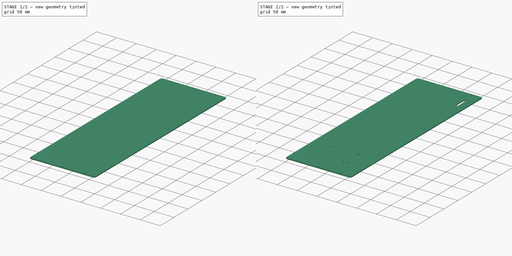
[diagram: build sequence overview — one tinted view per stage of 2, left to right]
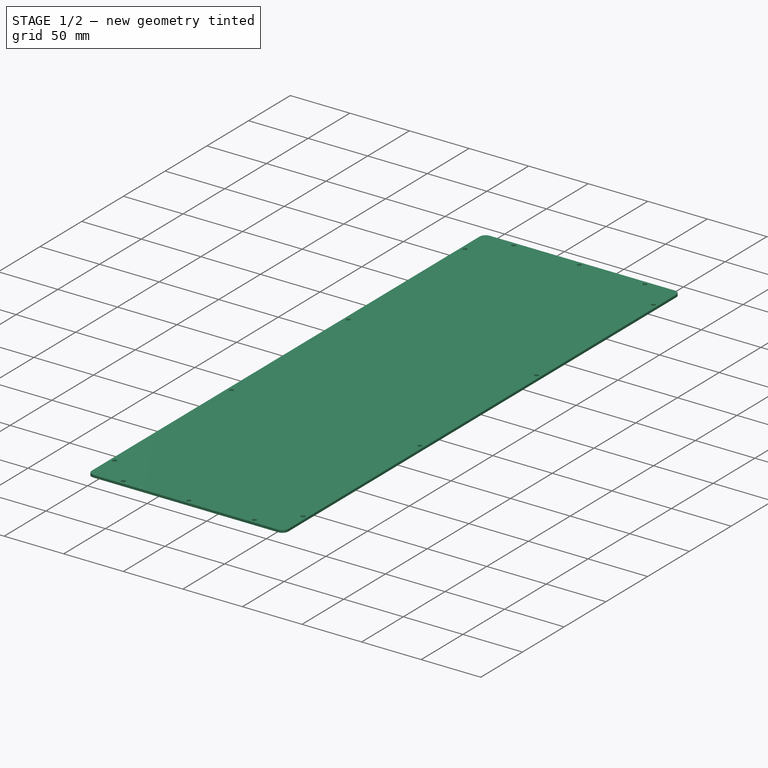
[diagram: stage 1 of 2 — iso view after this stage's code; geometry added in this stage tinted green]
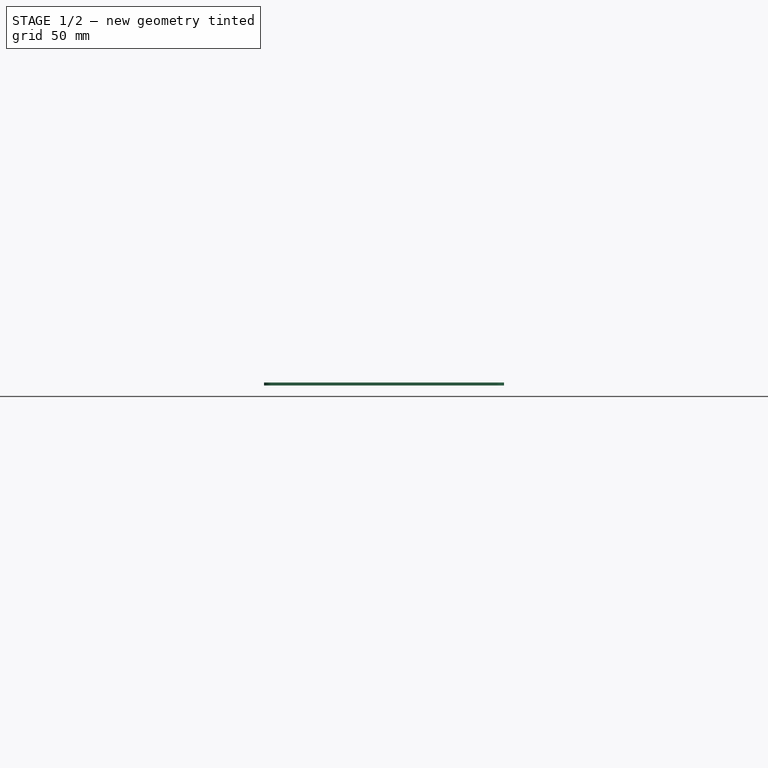
[diagram: stage 1 of 2 — front view after this stage's code; geometry added in this stage tinted green]
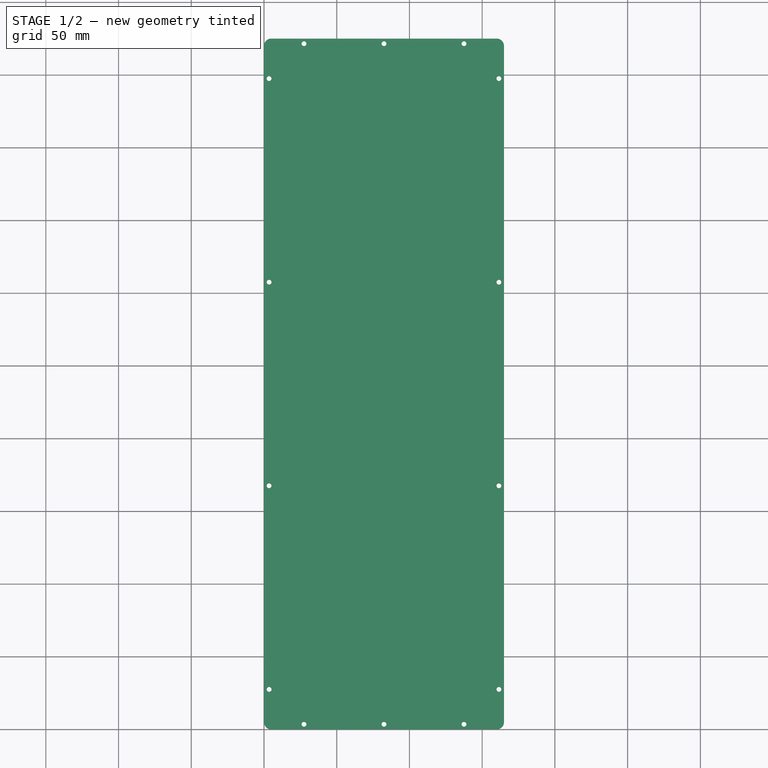
[diagram: stage 1 of 2 — top view after this stage's code; geometry added in this stage tinted green]
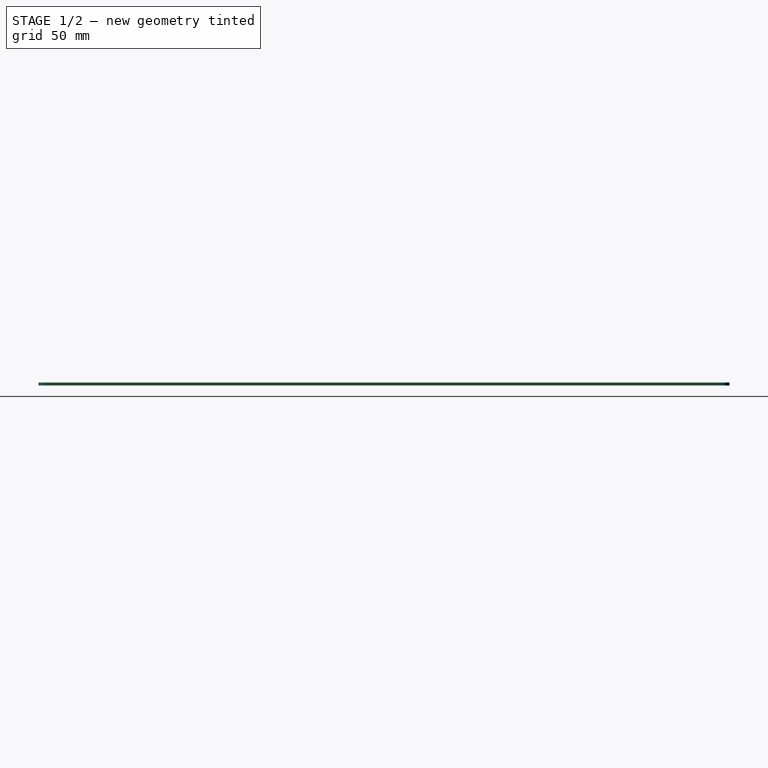
[diagram: stage 1 of 2 — right view after this stage's code; geometry added in this stage tinted green]
FCSTD DOCUMENT  (FreeCAD 0.16R5861 (Git))
Label: electronics_cover_revA
License: All rights reserved
LicenseURL: http://en.wikipedia.org/wiki/All_rights_reserved
objects: Drawing::FeatureView×65, Sketcher::SketchObject×4, PartDesign::Pocket×3, Drawing::FeatureViewPart×2, PartDesign::Pad×1, Drawing::FeaturePage×1
note: 12 computed .brp shape members not serialized (recipe doc carries the construction recipe); baked Part::Feature solids carry a one-line shape summary decoded from their .brp

FEATURE [Sketcher::SketchObject] Sketch
  sketch-geometry (8):
    g0: LineSegment StartX=5 StartY=475 StartZ=0 EndX=160 EndY=475 EndZ=0
    g1: LineSegment StartX=165 StartY=470 StartZ=0 EndX=165 EndY=5 EndZ=0
    g2: LineSegment StartX=160 StartY=0 StartZ=0 EndX=5 EndY=0 EndZ=0
    g3: LineSegment StartX=0 StartY=5 StartZ=0 EndX=0 EndY=470 EndZ=0
    g4: ArcOfCircle CenterX=5 CenterY=470 CenterZ=0 NormalX=0 NormalY=0 NormalZ=1 Radius=5 StartAngle=1.5708 EndAngle=3.14159
    g5: ArcOfCircle CenterX=160 CenterY=470 CenterZ=0 NormalX=0 NormalY=0 NormalZ=1 Radius=5 StartAngle=0 EndAngle=1.5708
    g6: ArcOfCircle CenterX=160 CenterY=5 CenterZ=0 NormalX=0 NormalY=0 NormalZ=1 Radius=5 StartAngle=4.71239 EndAngle=6.28319
    g7: ArcOfCircle CenterX=5 CenterY=5 CenterZ=0 NormalX=0 NormalY=0 NormalZ=1 Radius=5 StartAngle=3.14159 EndAngle=4.71239
  constraints (20):
    c: Horizontal(g0)
    c: Horizontal(g2)
    c: Vertical(g1)
    c: Vertical(g3)
    c: Tangent(g0,g4) = 1.5708
    c: Tangent(g3,g4) = 1.5708
    c: Radius(g4) = 5
    c: Tangent(g1,g5) = 1.5708
    c: Tangent(g0,g5) = 1.5708
    c: DistanceY(g-1,g0) = 475
    c: DistanceX(g1,g3) = -165
    c: Equal(g4,g5)
    c: Tangent(g1,g6) = 1.5708
    c: Tangent(g2,g6) = 1.5708
    c: Radius(g6) = 5
    c: Tangent(g3,g7) = 1.5708
    c: Tangent(g2,g7) = 1.5708
    c: Equal(g6,g7)
    c: PointOnObject(g-1,g3)
    c: PointOnObject(g-1,g2)
FEATURE [PartDesign::Pad] Pad
  Length = 2.03
  Length2 = 100
  Sketch = -> Sketch
  Type = 0
FEATURE [Sketcher::SketchObject] Sketch001
  ExternalGeometry = -> [Pad]
  Placement = pos=(0,0,2.03) rot=(0,0,1;0rad)
  Support = -> Pad [Face10]
  sketch-geometry (25):
    g0: LineSegment [constr] StartX=27.5 StartY=471.5 StartZ=0 EndX=137.5 EndY=471.5 EndZ=0
    g1: LineSegment [constr] StartX=137.5 StartY=471.5 StartZ=0 EndX=137.5 EndY=3.5 EndZ=0
    g2: LineSegment [constr] StartX=137.5 StartY=3.5 StartZ=0 EndX=27.5 EndY=3.5 EndZ=0
    g3: LineSegment [constr] StartX=27.5 StartY=3.5 StartZ=0 EndX=27.5 EndY=471.5 EndZ=0
    g4: Circle CenterX=137.5 CenterY=3.5 CenterZ=0 NormalX=0 NormalY=0 NormalZ=1 Radius=1.65
    g5: Circle CenterX=27.5 CenterY=3.5 CenterZ=0 NormalX=0 NormalY=0 NormalZ=1 Radius=1.65
    g6: LineSegment [constr] StartX=82.5 StartY=471.5 StartZ=0 EndX=82.5 EndY=3.5 EndZ=0
    g7: Circle CenterX=82.5 CenterY=3.5 CenterZ=0 NormalX=0 NormalY=0 NormalZ=1 Radius=1.65
    g8: LineSegment [constr] StartX=3.5 StartY=447.5 StartZ=0 EndX=161.5 EndY=447.5 EndZ=0
    g9: LineSegment [constr] StartX=161.5 StartY=447.5 StartZ=0 EndX=161.5 EndY=27.5 EndZ=0
    g10: LineSegment [constr] StartX=161.5 StartY=27.5 StartZ=0 EndX=3.5 EndY=27.5 EndZ=0
    g11: LineSegment [constr] StartX=3.5 StartY=27.5 StartZ=0 EndX=3.5 EndY=447.5 EndZ=0
    g12: LineSegment [constr] StartX=3.5 StartY=307.5 StartZ=0 EndX=161.5 EndY=307.5 EndZ=0
    g13: LineSegment [constr] StartX=3.5 StartY=167.5 StartZ=0 EndX=161.5 EndY=167.5 EndZ=0
    g14: Circle CenterX=3.5 CenterY=27.5 CenterZ=0 NormalX=0 NormalY=0 NormalZ=1 Radius=1.65
    g15: Circle CenterX=161.5 CenterY=27.5 CenterZ=0 NormalX=0 NormalY=0 NormalZ=1 Radius=1.65
    g16: Circle CenterX=161.5 CenterY=167.5 CenterZ=0 NormalX=0 NormalY=0 NormalZ=1 Radius=1.65
    g17: Circle CenterX=161.5 CenterY=307.5 CenterZ=0 NormalX=0 NormalY=0 NormalZ=1 Radius=1.65
    g18: Circle CenterX=3.5 CenterY=307.5 CenterZ=0 NormalX=0 NormalY=0 NormalZ=1 Radius=1.65
    g19: Circle CenterX=3.5 CenterY=167.5 CenterZ=0 NormalX=0 NormalY=0 NormalZ=1 Radius=1.65
    g20: Circle CenterX=3.5 CenterY=447.5 CenterZ=0 NormalX=0 NormalY=0 NormalZ=1 Radius=1.65
    g21: Circle CenterX=27.5 CenterY=471.5 CenterZ=0 NormalX=0 NormalY=0 NormalZ=1 Radius=1.65
    g22: Circle CenterX=82.5 CenterY=471.5 CenterZ=0 NormalX=0 NormalY=0 NormalZ=1 Radius=1.65
    g23: Circle CenterX=137.5 CenterY=471.5 CenterZ=0 NormalX=0 NormalY=0 NormalZ=1 Radius=1.65
    g24: Circle CenterX=161.5 CenterY=447.5 CenterZ=0 NormalX=0 NormalY=0 NormalZ=1 Radius=1.65
  constraints (64):
    c: Coincident(g1,g0)
    c: Coincident(g3,g0)
    c: Coincident(g2,g1)
    c: Coincident(g2,g3)
    c: Coincident(g8,g9)
    c: Coincident(g11,g8)
    c: Coincident(g10,g9)
    c: Coincident(g11,g10)
    c: Horizontal(g0)
    c: Horizontal(g8)
    c: Horizontal(g2)
    c: Horizontal(g10)
    c: Horizontal(g13)
    c: Horizontal(g12)
    c: Vertical(g11)
    c: Vertical(g3)
    c: Vertical(g6)
    c: Vertical(g1)
    c: Vertical(g9)
    c: DistanceY(g-1,g2) = 3.5
    c: DistanceX(g-1,g2) = 27.5
    c: Coincident(g2,g5)
    c: DistanceX(g-1,g1) = 137.5
    c: DistanceX(g-1,g6) = 82.5
    c: Coincident(g6,g7)
    c: Coincident(g1,g4)
    c: DistanceX(g-1,g10) = 3.5
    c: DistanceY(g-1,g10) = 27.5
    c: Coincident(g9,g15)
    c: Coincident(g10,g14)
    c: DistanceY(g12,g8) = 140
    c: Coincident(g13,g16)
    c: Coincident(g13,g19)
    c: Coincident(g12,g18)
    c: Coincident(g12,g17)
    c: PointOnObject(g6,g0)
    c: Coincident(g8,g24)
    c: Coincident(g0,g23)
    c: Coincident(g6,g22)
    c: Coincident(g0,g21)
    c: Coincident(g8,g20)
    c: Radius(g5) = 1.65
    c: Equal(g5,g14)
    c: Equal(g14,g7)
    c: Equal(g7,g4)
    c: Equal(g4,g15)
    c: Equal(g15,g16)
    c: Equal(g16,g19)
    c: Equal(g19,g18)
    c: Equal(g18,g17)
    c: Equal(g17,g24)
    c: Equal(g24,g23)
    c: Equal(g23,g22)
    c: Equal(g22,g21)
    c: Equal(g21,g20)
    c: PointOnObject(g6,g2)
    c: PointOnObject(g13,g9)
    c: PointOnObject(g13,g11)
    c: PointOnObject(g12,g11)
    c: PointOnObject(g12,g9)
    c: DistanceY(g-6,g0) = -3.5
    c: DistanceX(g10,g9) = 158
    c: DistanceY(g-1,g13) = 167.5
    c: DistanceY(g13,g12) = 140
FEATURE [PartDesign::Pocket] Pocket
  Length = 5
  Sketch = -> Sketch001
  Type = 0
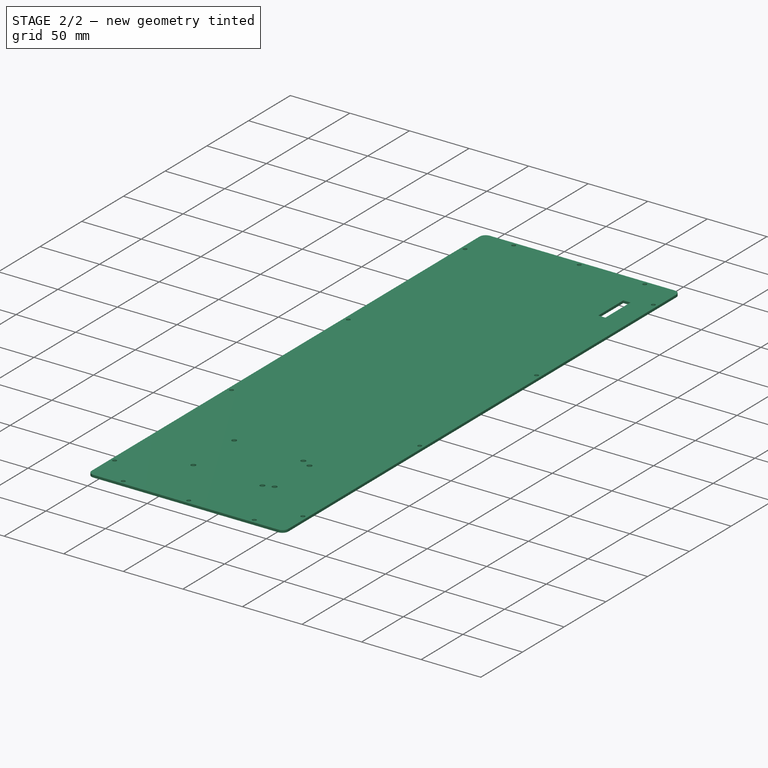
[diagram: stage 2 of 2 — iso view after this stage's code; geometry added in this stage tinted green]
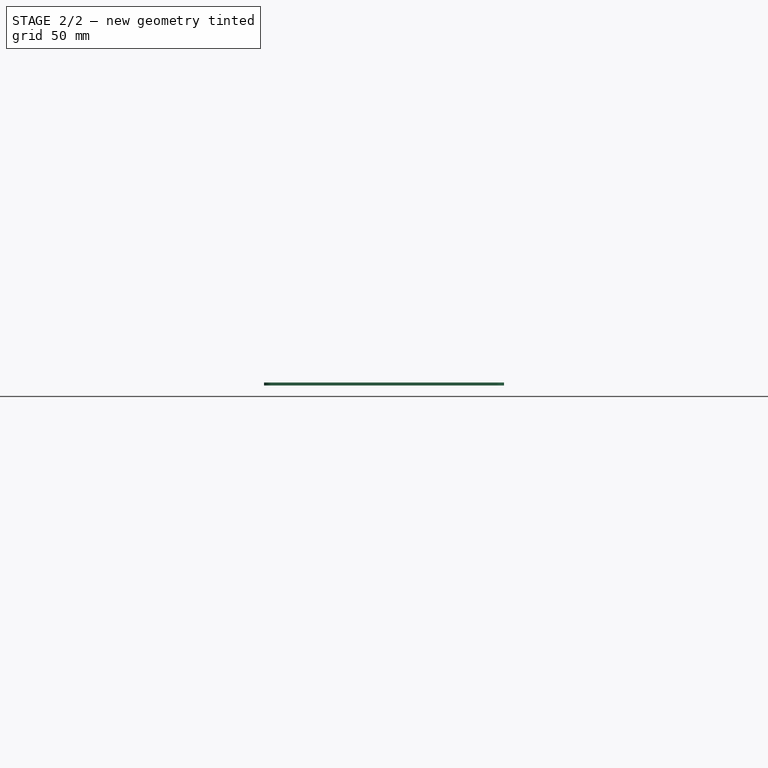
[diagram: stage 2 of 2 — front view after this stage's code; geometry added in this stage tinted green]
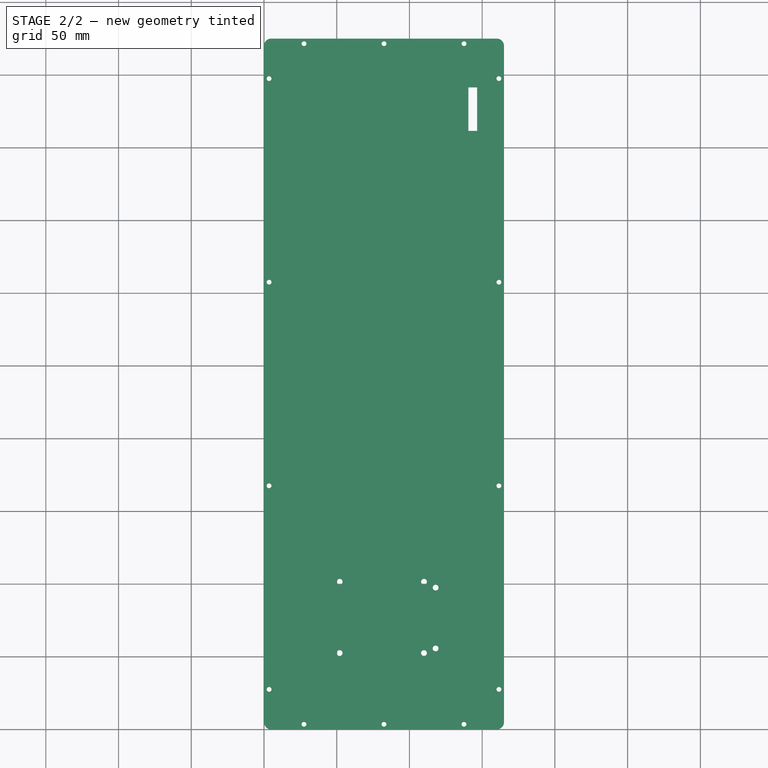
[diagram: stage 2 of 2 — top view after this stage's code; geometry added in this stage tinted green]
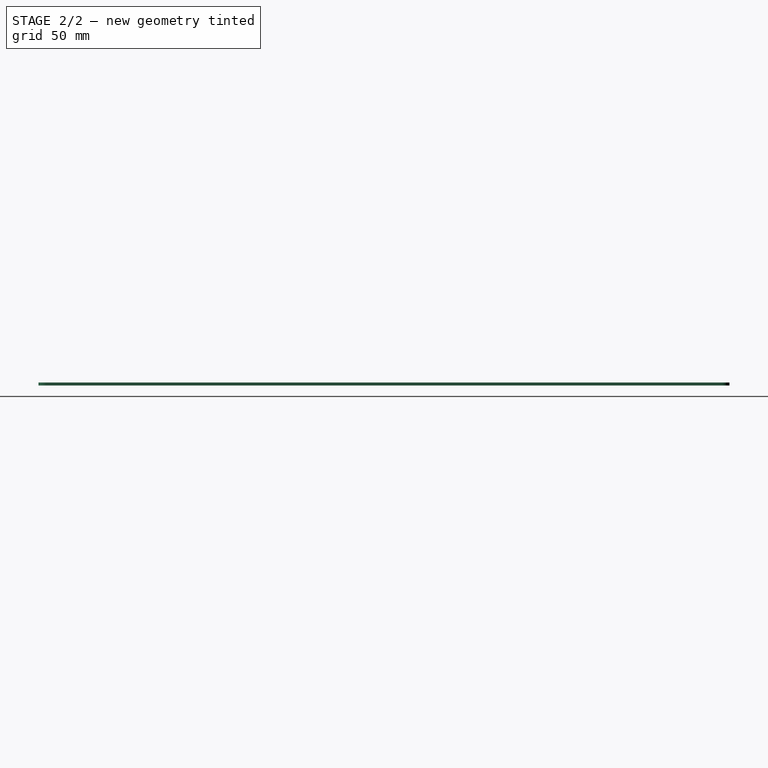
[diagram: stage 2 of 2 — right view after this stage's code; geometry added in this stage tinted green]
FEATURE [Sketcher::SketchObject] Sketch002
  Placement = pos=(0,0,2.03) rot=(0,0,1;0rad)
  Support = -> Pocket [Face5]
  sketch-geometry (4):
    g0: LineSegment StartX=140.5 StartY=441.5 StartZ=0 EndX=146.5 EndY=441.5 EndZ=0
    g1: LineSegment StartX=146.5 StartY=441.5 StartZ=0 EndX=146.5 EndY=411.5 EndZ=0
    g2: LineSegment StartX=146.5 StartY=411.5 StartZ=0 EndX=140.5 EndY=411.5 EndZ=0
    g3: LineSegment StartX=140.5 StartY=411.5 StartZ=0 EndX=140.5 EndY=441.5 EndZ=0
  constraints (12):
    c: Coincident(g0,g1)
    c: Coincident(g1,g2)
    c: Coincident(g2,g3)
    c: Coincident(g3,g0)
    c: Horizontal(g0)
    c: Horizontal(g2)
    c: Vertical(g1)
    c: Vertical(g3)
    c: DistanceY(g-1,g1) = 411.5
    c: DistanceY(g1) = -30
    c: DistanceX(g0) = 6
    c: DistanceX(g-1,g2) = 140.5
FEATURE [PartDesign::Pocket] Pocket001
  Length = 5
  Sketch = -> Sketch002
  Type = 0
FEATURE [Sketcher::SketchObject] Sketch004
  Placement = pos=(0,0,2.03) rot=(0,0,1;0rad)
  Support = -> Pocket001 [Face5]
  sketch-geometry (18):
    g0: LineSegment [constr] StartX=52 StartY=52.5 StartZ=0 EndX=110 EndY=52.5 EndZ=0
    g1: LineSegment [constr] StartX=110 StartY=52.5 StartZ=0 EndX=110 EndY=101.5 EndZ=0
    g2: LineSegment [constr] StartX=110 StartY=101.5 StartZ=0 EndX=52 EndY=101.5 EndZ=0
    g3: LineSegment [constr] StartX=52 StartY=101.5 StartZ=0 EndX=52 EndY=52.5 EndZ=0
    g4: Circle [constr] CenterX=52 CenterY=52.5 CenterZ=0 NormalX=0 NormalY=0 NormalZ=1 Radius=2
    g5: Circle [constr] CenterX=52 CenterY=101.5 CenterZ=0 NormalX=0 NormalY=0 NormalZ=1 Radius=2
    g6: Circle CenterX=118 CenterY=97.5 CenterZ=0 NormalX=0 NormalY=0 NormalZ=1 Radius=2
    g7: Circle CenterX=118 CenterY=55.675 CenterZ=0 NormalX=0 NormalY=0 NormalZ=1 Radius=2
    g8: LineSegment [constr] StartX=52 StartY=101.5 StartZ=0 EndX=52 EndY=52.5 EndZ=0
    g9: LineSegment [constr] StartX=118 StartY=55.675 StartZ=0 EndX=118 EndY=97.5 EndZ=0
    g10: Circle CenterX=52 CenterY=52.5 CenterZ=0 NormalX=0 NormalY=0 NormalZ=1 Radius=2
    g11: Circle CenterX=52 CenterY=101.5 CenterZ=0 NormalX=0 NormalY=0 NormalZ=1 Radius=2
    g12: Circle CenterX=110 CenterY=101.5 CenterZ=0 NormalX=0 NormalY=0 NormalZ=1 Radius=2
    g13: Circle CenterX=110 CenterY=52.5 CenterZ=0 NormalX=0 NormalY=0 NormalZ=1 Radius=2
    g14: LineSegment [constr] StartX=2.5 StartY=114 StartZ=0 EndX=52 EndY=101.5 EndZ=0
    g15: LineSegment [constr] StartX=52 StartY=101.5 StartZ=0 EndX=2.5 EndY=89 EndZ=0
    g16: LineSegment [constr] StartX=167.5 StartY=110 StartZ=0 EndX=118 EndY=97.5 EndZ=0
    g17: LineSegment [constr] StartX=118 StartY=97.5 StartZ=0 EndX=167.5 EndY=85 EndZ=0
  constraints (30):
    c: Coincident(g0,g1)
    c: Coincident(g3,g0)
    c: Coincident(g1,g2)
    c: Coincident(g2,g3)
    c: Coincident(g2,g8)
    c: Coincident(g2,g14)
    c: Coincident(g2,g15)
    c: Coincident(g3,g8)
    c: Coincident(g9,g16)
    c: Coincident(g9,g17)
    c: Distance(g-1,g0) = 52.5
    c: Distance(g-1,g3) = 52
    c: DistanceX(g0) = 58
    c: DistanceY(g3) = -49
    c: Radius(g4) = 2
    c: Equal(g4,g5)
    c: Equal(g5,g12)
    c: Equal(g12,g13)
    c: Equal(g13,g7)
    c: Equal(g7,g6)
    c: DistanceY(g-1,g7) = 55.675
    c: DistanceY(g9) = 41.825
    c: Distance(g-1,g9) = 118
    c: Coincident(g7,g9)
    c: Coincident(g6,g9)
    c: Coincident(g1,g12)
    c: Coincident(g2,g5)
    c: Coincident(g2,g11)
    c: Coincident(g0,g4)
    c: Coincident(g0,g10)
FEATURE [PartDesign::Pocket] Pocket002
  Length = 5
  Sketch = -> Sketch004
  Type = 0
FEATURE [Drawing::FeatureView] dimText004
  Rotation = 0
  ViewResult = <g> <text x="213.000000" y="48.000000" font-family="inherit" font-size="3" fill="rgb(0,0,0)" text-anchor="inherit" transform="rotate(0.000000 213.000000,48.000000)" >2. Material: 12AWG (0.8") Aluminum.</text> </g>
  Visible = true
  X = 0
  Y = 0
FEATURE [Drawing::FeatureView] dimText002
  Rotation = 0
  ViewResult = <g> <text x="216.000000" y="36.000000" font-family="inherit" font-size="5" fill="rgb(0,0,0)" text-anchor="inherit" transform="rotate(0.000000 216.000000,36.000000)" >Notes:</text> </g>
  Visible = true
  X = 0
  Y = 0
FEATURE [Drawing::FeatureView] dim026
  Rotation = 0
  ViewResult = <g>  <circle cx ="64.172750" cy ="69.110000" r="0.500000" stroke="none" fill="rgb(0,0,255)" /> \n<line x1="65.000000" y1="40.000000" x2="64.154002" y2="69.769734" style="stroke:rgb(0,0,255);stroke-width:0.20" />\n<polygon points="64.191498,68.450266 65.026415,65.472782 64.276718,65.451477 63.527021,65.430172" style="fill:rgb(0,0,255);stroke:rgb(0,0,255);stroke-width:0" />\n<polygon points="64.154002,69.769734 63.319085,72.747218 64.068782,72.768523 64.818479,72.789828" style="fill:rgb(0,0,255);stroke:rgb(0,0,255);stroke-width:0" />\n<line x1="65.000000" y1="40.000000" x2="85.000000" y2="40.000000" style="stroke:rgb(0,0,255);stroke-width:0.20" />\n<text x="75.000000" y="38.000000" font-family="Verdana" font-size="3" fill="rgb(0,0,255)" text-anchor="middle"  >6X Ø4.0 THRU</text> </g>
  Visible = true
  X = 0
  Y = 0
FEATURE [Drawing::FeatureView] dimText006
  Rotation = 0
  ViewResult = <g> <text x="213.000000" y="60.000000" font-family="inherit" font-size="3" fill="rgb(0,0,0)" text-anchor="inherit" transform="rotate(0.000000 213.000000,60.000000)" >4. Part is to be powder coated</text> </g>
  Visible = true
  X = 0
  Y = 0
FEATURE [Drawing::FeatureView] dimText005
  Rotation = 0
  ViewResult = <g> <text x="213.000000" y="54.000000" font-family="inherit" font-size="3.0" fill="rgb(0,0,0)" text-anchor="inherit"  >3. Break all sharp edges prior to coating.</text> </g>
  Visible = true
  X = 0
  Y = 0
FEATURE [Drawing::FeatureView] dimText009
  Rotation = 0
  ViewResult = <g> <text x="217.909644" y="76.059212" font-family="inherit" font-size="3" fill="rgb(0,0,0)" text-anchor="inherit" transform="rotate(0.000000 217.909644,76.059212)" >exceed 0.08mm</text> </g>
  Visible = true
  X = 0
  Y = 0
FEATURE [Drawing::FeatureView] dim012
  Rotation = 0
  ViewResult = <g> \n  <line x1="44.625000" y1="19.665000" x2="38.738699" y2="19.665000" style="stroke:rgb(0,0,255);stroke-width:0.20" />\n<line x1="44.625000" y1="20.334900" x2="38.738699" y2="20.334900" style="stroke:rgb(0,0,255);stroke-width:0.20" />\n<line x1="39.738699" y1="19.665000" x2="39.738699" y2="20.334900" style="stroke:rgb(0,0,255);stroke-width:0.20" /> \n  <polygon points="39.738699,20.334900 38.988699,23.334900 39.738699,23.334900 40.488699,23.334900" style="fill:rgb(0,0,255);stroke:rgb(0,0,255);stroke-width:0" /><polygon points="39.738699,19.665000 40.488699,16.665000 39.738699,16.665000 38.988699,16.665000" style="fill:rgb(0,0,255);stroke:rgb(0,0,255);stroke-width:0" /> \n  <text x="38.738699" y="19.999950" font-family="Verdana" font-size="3" fill="rgb(0,0,255)" text-anchor="middle" transform="rotate(-90.000000 38.738699,19.999950)" >2.03</text> </g>
  Visible = true
  X = 0
  Y = 0
FEATURE [Drawing::FeatureViewPart] Ortho001  label="Ortho_0_-1"
  Direction = (0,0,-1)
  HiddenWidth = 0.15
  LineWidth = 0.35
  Rotation = 90
  Scale = 0.33
  ShowHiddenLines = false
  ShowSmoothLines = false
  Source = -> Pocket002
  Tolerance = 0.05
  ViewResult = <g id="Ortho_0_-1"\n   transform="rotate(90,45.8,108.05) translate(45.8,108.05) scale(0.33,0.33)"\n  >\n<g   stroke="rgb(0, 0, 0)"\n   stroke-width="1.06061"\n   stroke-linecap="butt"\n   stroke-linejoin="miter"\n   fill="none"\n   transform="scale(1,-1)"\n  >\n<path id= "1" d=" M 4.00388e-27 5 L 4.00388e-27 470 " />\n<path d="M0 5 A5 5 0 0 0 -5 0" /><path d="M-5 475 A5 5 0 0 0 0 470" /><path id= "4" d=" M -160 0 L -5 0 " />\n<path id= "5" d=" M -5 475 L -160 475 " />\n<path d="M-160 0 A5 5 0 0 0 -165 5" /><path d="M-165 470 A5 5 0 0 0 -160 475" /><path id= "8" d=" M -165 470 L -165 5 " />\n<circle cx ="-161.5" cy ="27.5" r ="1.65" /><circle cx ="-161.5" cy ="307.5" r ="1.65" /><circle cx ="-137.5" cy ="3.5" r ="1.65" /><circle cx ="-27.5" cy ="471.5" r ="1.65" /><circle cx ="-137.5" cy ="471.5" r ="1.65" /><circle cx ="-82.5" cy ="471.5" r ="1.65" /><circle cx ="-3.5" cy ="27.5" r ="1.65" /><circle cx ="-3.5" cy ="167.5" r ="1.65" /><circle cx ="-3.5" cy ="447.5" r ="1.65" /><circle cx ="-3.5" cy ="307.5" r ="1.65" /><circle cx ="-27.5" cy ="3.5" r ="1.65" /><circle cx ="-82.5" cy ="3.5" r ="1.65" /><circle cx ="-161.5" cy ="167.5" r ="1.65" /><circle cx ="-161.5" cy ="447.5" r ="1.65" /><path id= "23" d=" M -146.5 441.5 L -146.5 411.5 " />\n<path id= "24" d=" M -140.5 441.5 L -146.5 441.5 " />\n<path id= "25" d=" M -146.5 411.5 L -140.5 411.5 " />\n<path id= "26" d=" M -140.5 411.5 L -140.5 441.5 " />\n<circle cx ="-52" cy ="101.5" r ="2" /><circle cx ="-110" cy ="101.5" r ="2" /><circle cx ="-118" cy ="97.5" r ="2" /><circle cx ="-118" cy ="55.675" r ="2" /><circle cx ="-52" cy ="52.5" r ="2" /><circle cx ="-110" cy ="52.5" r ="2" /></g>\n</g>
  Visible = true
  X = 45.8
  Y = 108.05
FEATURE [Drawing::FeatureViewPart] Ortho  label="Ortho_0_0"
  Direction = (1,0,0)
  HiddenWidth = 0.15
  LineWidth = 0.35
  Rotation = -90
  Scale = 0.33
  ShowHiddenLines = false
  ShowSmoothLines = false
  Source = -> Pocket002
  Tolerance = 0.05
  ViewResult = <g id="Ortho_0_0"\n   transform="rotate(-90,45.8,20.3349) translate(45.8,20.3349) scale(0.33,0.33)"\n  >\n<g   stroke="rgb(0, 0, 0)"\n   stroke-width="1.06061"\n   stroke-linecap="butt"\n   stroke-linejoin="miter"\n   fill="none"\n   transform="scale(1,-1)"\n  >\n<path d="M0,0 L0,-0.031439  L0,-0.12536  L0,-0.280583  L0,-0.495156  L0,-0.766379  L0,-1.09084  L0,-1.46447  L0,-1.88255  L0,-2.33984  L0,-2.83058  L0,-3.3486  L0,-3.8874  L0,-4.44018  L0,-5 " /><path d="M0,-470 L0,-470.56  L0,-471.113  L0,-471.651  L0,-472.169  L0,-472.66  L0,-473.117  L0,-473.536  L0,-473.909  L0,-474.234  L0,-474.505  L0,-474.719  L0,-474.875  L0,-474.969  L0,-475 " /><path id= "3" d=" M 0 -470 L 0 -5 " />\n<path d="M2.03,0 L2.03,-0.031439  L2.03,-0.12536  L2.03,-0.280583  L2.03,-0.495156  L2.03,-0.766379  L2.03,-1.09084  L2.03,-1.46447  L2.03,-1.88255  L2.03,-2.33984  L2.03,-2.83058  L2.03,-3.3486  L2.03,-3.8874  L2.03,-4.44018  L2.03,-5 " /><path d="M2.03,-470 L2.03,-470.56  L2.03,-471.113  L2.03,-471.651  L2.03,-472.169  L2.03,-472.66  L2.03,-473.117  L2.03,-473.536  L2.03,-473.909  L2.03,-474.234  L2.03,-474.505  L2.03,-474.719  L2.03,-474.875  L2.03,-474.969  L2.03,-475 " /><path id= "6" d=" M 2.03 -470 L 2.03 -5 " />\n<path id= "7" d=" M 0 0 L 2.03 0 " />\n<path id= "8" d=" M 0 -475 L 2.03 -475 " />\n</g>\n</g>
  Visible = true
  X = 45.8
  Y = 20.3349
FEATURE [Drawing::FeatureView] dimText003
  Rotation = 0
  ViewResult = <g> <text x="213.000000" y="42.000000" font-family="inherit" font-size="3" fill="rgb(0,0,0)" text-anchor="inherit" transform="rotate(0.000000 213.000000,42.000000)" >1. Parts must be RoHS compliant.</text> </g>
  Visible = true
  X = 0
  Y = 0
FEATURE [Drawing::FeatureView] dimText008
  Rotation = 0
  ViewResult = <g> <text x="217.529348" y="71.115364" font-family="inherit" font-size="3" fill="rgb(0,0,0)" text-anchor="inherit"  >Coating thickness not to</text> </g>
  Visible = true
  X = 0
  Y = 0
FEATURE [Drawing::FeatureView] dimText011
  Rotation = 0
  ViewResult = <g> <text x="217.461788" y="86.684768" font-family="inherit" font-size="3" fill="rgb(0,0,0)" text-anchor="inherit" transform="rotate(0.000000 217.461788,86.684768)" >shown on print.</text> </g>
  Visible = true
  X = 0
  Y = 0
FEATURE [Drawing::FeatureView] dimText007
  Rotation = 0
  ViewResult = <g> <text x="216.958904" y="65.410923" font-family="inherit" font-size="3" fill="rgb(0,0,0)" text-anchor="inherit"  >with Cardinal color C241-BK109.</text> </g>
  Visible = true
  X = 0
  Y = 0
FEATURE [Drawing::FeatureView] dimText010
  Rotation = 0
  ViewResult = <g> <text x="213.562473" y="81.585664" font-family="inherit" font-size="3" fill="rgb(0,0,0)" text-anchor="inherit"  >5. 3D model governs dimensions not</text> </g>
  Visible = true
  X = 0
  Y = 0
FEATURE [Drawing::FeatureView] dim003
  Rotation = 0
  ViewResult = <g> <line x1="45.800000" y1="108.400000" x2="45.800000" y2="124.307280" style="stroke:rgb(0,0,255);stroke-width:0.20" />\n<line x1="63.125000" y1="93.550053" x2="63.125000" y2="124.307280" style="stroke:rgb(0,0,255);stroke-width:0.20" />\n<line x1="45.800000" y1="123.307280" x2="63.125000" y2="123.307280" style="stroke:rgb(0,0,255);stroke-width:0.20" />\n<polygon points="45.800000,123.307280 48.800000,124.057280 48.800000,123.307280 48.800000,122.557280" style="fill:rgb(0,0,255);stroke:rgb(0,0,255);stroke-width:0" />\n<polygon points="63.125000,123.307280 60.125000,122.557280 60.125000,123.307280 60.125000,124.057280" style="fill:rgb(0,0,255);stroke:rgb(0,0,255);stroke-width:0" />\n<text x="54.462500" y="122.307280" font-family="Verdana" font-size="3.6" fill="rgb(0,0,255)" text-anchor="middle" transform="rotate(0.000000 54.462500,122.307280)" >52.5</text> </g> 
  Visible = true
  X = 0
  Y = 0
FEATURE [Drawing::FeatureView] dim004
  Rotation = 0
  ViewResult = <g> <line x1="45.800000" y1="108.400000" x2="45.800000" y2="130.404893" style="stroke:rgb(0,0,255);stroke-width:0.20" />\n<line x1="64.172750" y1="70.450053" x2="64.172750" y2="130.404893" style="stroke:rgb(0,0,255);stroke-width:0.20" />\n<line x1="45.800000" y1="129.404893" x2="64.172750" y2="129.404893" style="stroke:rgb(0,0,255);stroke-width:0.20" />\n<polygon points="45.800000,129.404893 48.800000,130.154893 48.800000,129.404893 48.800000,128.654893" style="fill:rgb(0,0,255);stroke:rgb(0,0,255);stroke-width:0" />\n<polygon points="64.172750,129.404893 61.172750,128.654893 61.172750,129.404893 61.172750,130.154893" style="fill:rgb(0,0,255);stroke:rgb(0,0,255);stroke-width:0" />\n<text x="54.986375" y="128.404893" font-family="Verdana" font-size="3.6" fill="rgb(0,0,255)" text-anchor="middle" transform="rotate(0.000000 54.986375,128.404893)" >55.675</text> </g> 
  Visible = true
  X = 0
  Y = 0
FEATURE [Drawing::FeatureView] dim005
  Rotation = 0
  ViewResult = <g> <line x1="45.800000" y1="108.400000" x2="45.800000" y2="136.050831" style="stroke:rgb(0,0,255);stroke-width:0.20" />\n<line x1="79.295000" y1="92.230053" x2="79.295000" y2="136.050831" style="stroke:rgb(0,0,255);stroke-width:0.20" />\n<line x1="45.800000" y1="135.050831" x2="79.295000" y2="135.050831" style="stroke:rgb(0,0,255);stroke-width:0.20" />\n<polygon points="45.800000,135.050831 48.800000,135.800831 48.800000,135.050831 48.800000,134.300831" style="fill:rgb(0,0,255);stroke:rgb(0,0,255);stroke-width:0" />\n<polygon points="79.295000,135.050831 76.295000,134.300831 76.295000,135.050831 76.295000,135.800831" style="fill:rgb(0,0,255);stroke:rgb(0,0,255);stroke-width:0" />\n<text x="62.547500" y="134.050831" font-family="Verdana" font-size="3.6" fill="rgb(0,0,255)" text-anchor="middle" transform="rotate(0.000000 62.547500,134.050831)" >101.5</text> </g> 
  Visible = true
  X = 0
  Y = 0
FEATURE [Drawing::FeatureView] dimText012
  Rotation = 0
  ViewResult = <g> <text x="213.262526" y="91.783872" font-family="inherit" font-size="3" fill="rgb(0,0,0)" text-anchor="inherit"  >6. Mask entire outward facing surface</text> </g>
  Visible = true
  X = 0
  Y = 0
FEATURE [Drawing::FeatureView] dimText013
  Rotation = 0
  ViewResult = <g> <text x="217.511154" y="97.476542" font-family="inherit" font-size="3" fill="rgb(0,0,0)" text-anchor="inherit"  >shown to the left prior to powder coat</text> </g>
  Visible = true
  X = 0
  Y = 0
FEATURE [Drawing::FeatureView] dimText001
  Rotation = 0
  ViewResult = <g> <text x="8.581825" y="167.345594" font-family="inherit" font-size="5" fill="rgb(0,0,0)" text-anchor="inherit" transform="rotate(0.000000 8.581825,167.345594)" >Revision</text> </g>
  Visible = true
  X = 0
  Y = 0
FEATURE [Drawing::FeatureView] dimText014
  Rotation = 0
  ViewResult = <g> <text x="39.069889" y="167.119757" font-family="inherit" font-size="5" fill="rgb(0,0,0)" text-anchor="inherit"  >Notes</text> </g>
  Visible = true
  X = 0
  Y = 0
FEATURE [Drawing::FeatureView] dimText015
  Rotation = 0
  ViewResult = <g> <text x="15.131113" y="173.217370" font-family="inherit" font-size="4" fill="rgb(0,0,0)" text-anchor="inherit" transform="rotate(0.000000 15.131113,173.217370)" >IR</text> </g>
  Visible = true
  X = 0
  Y = 0
FEATURE [Drawing::FeatureView] dimText016
  Rotation = 0
  ViewResult = <g> <text x="38.844052" y="172.991532" font-family="inherit" font-size="4" fill="rgb(0,0,0)" text-anchor="inherit" transform="rotate(0.000000 38.844052,172.991532)" >Mangrove build release</text> </g>
  Visible = true
  X = 0
  Y = 0
FEATURE [Drawing::FeatureView] dimText017
  Rotation = 0
  ViewResult = <g> <text x="13.776088" y="179.314982" font-family="inherit" font-size="4" fill="rgb(0,0,0)" text-anchor="inherit"  >4.0</text> </g>
  Visible = true
  X = 0
  Y = 0
FEATURE [Drawing::FeatureView] dimText018
  Rotation = 0
  ViewResult = <g> <text x="38.844052" y="179.314982" font-family="inherit" font-size="4" fill="rgb(0,0,0)" text-anchor="inherit" transform="rotate(0.000000 38.844052,179.314982)" >Nutmeg build release.</text> </g>
  Visible = true
  X = 0
  Y = 0
FEATURE [Drawing::FeatureView] dimText019
  Rotation = 0
  ViewResult = <g> <text x="42.231614" y="184.283408" font-family="inherit" font-size="4" fill="rgb(0,0,0)" text-anchor="inherit" transform="rotate(0.000000 42.231614,184.283408)" >Masking callout added</text> </g>
  Visible = true
  X = 0
  Y = 0
FEATURE [Drawing::FeatureView] dimText020
  Rotation = 0
  ViewResult = <g> <text x="14.453601" y="189.025995" font-family="inherit" font-size="3.5" fill="rgb(0,0,0)" text-anchor="inherit"  >4.1</text> </g>
  Visible = true
  X = 0
  Y = 0
FEATURE [Drawing::FeatureView] dimText021
  Rotation = 0
  ViewResult = <g> <text x="38.844052" y="189.025995" font-family="inherit" font-size="3.5" fill="rgb(0,0,0)" text-anchor="inherit"  >Was 480 x 170, now 478 x 168</text> </g>
  Visible = true
  X = 0
  Y = 0
FEATURE [Drawing::FeatureView] dimText022
  Rotation = 0
  ViewResult = <g> <text x="42.909127" y="193.091070" font-family="inherit" font-size="3.5" fill="rgb(0,0,0)" text-anchor="inherit"  >5mm holes were 6mm to edge, now 5 mm to edge</text> </g>
  Visible = true
  X = 0
  Y = 0
FEATURE [Drawing::FeatureView] dimText023
  Rotation = 0
  ViewResult = <g> <text x="43.360802" y="197.381983" font-family="inherit" font-size="3.5" fill="rgb(0,0,0)" text-anchor="inherit"  >SD slot moved 1mm to accommodate width change</text> </g>
  Visible = true
  X = 0
  Y = 0
FEATURE [Drawing::FeatureView] dim009
  Rotation = 0
  ViewResult = <g> <line x1="45.800000" y1="108.400000" x2="45.800000" y2="161.491008" style="stroke:rgb(0,0,255);stroke-width:0.20" />\n<line x1="202.550000" y1="108.400000" x2="202.550000" y2="161.491008" style="stroke:rgb(0,0,255);stroke-width:0.20" />\n<line x1="45.800000" y1="160.491008" x2="202.550000" y2="160.491008" style="stroke:rgb(0,0,255);stroke-width:0.20" />\n<polygon points="45.800000,160.491008 48.800000,161.241008 48.800000,160.491008 48.800000,159.741008" style="fill:rgb(0,0,255);stroke:rgb(0,0,255);stroke-width:0" />\n<polygon points="202.550000,160.491008 199.550000,159.741008 199.550000,160.491008 199.550000,161.241008" style="fill:rgb(0,0,255);stroke:rgb(0,0,255);stroke-width:0" />\n<text x="124.175000" y="159.491008" font-family="Verdana" font-size="3.6" fill="rgb(0,0,255)" text-anchor="middle" transform="rotate(0.000000 124.175000,159.491008)" >475</text> </g> 
  Visible = true
  X = 0
  Y = 0
FEATURE [Drawing::FeatureView] dim008
  Rotation = 0
  ViewResult = <g> <line x1="45.800000" y1="108.400000" x2="45.800000" y2="155.208052" style="stroke:rgb(0,0,255);stroke-width:0.20" />\n<line x1="193.475000" y1="108.350551" x2="193.475000" y2="155.208052" style="stroke:rgb(0,0,255);stroke-width:0.20" />\n<line x1="45.800000" y1="154.208052" x2="193.475000" y2="154.208052" style="stroke:rgb(0,0,255);stroke-width:0.20" />\n<polygon points="45.800000,154.208052 48.800000,154.958052 48.800000,154.208052 48.800000,153.458052" style="fill:rgb(0,0,255);stroke:rgb(0,0,255);stroke-width:0" />\n<polygon points="193.475000,154.208052 190.475000,153.458052 190.475000,154.208052 190.475000,154.958052" style="fill:rgb(0,0,255);stroke:rgb(0,0,255);stroke-width:0" />\n<text x="119.637500" y="153.208052" font-family="Verdana" font-size="3.6" fill="rgb(0,0,255)" text-anchor="middle" transform="rotate(0.000000 119.637500,153.208052)" >447.5</text> </g> 
  Visible = true
  X = 0
  Y = 0
FEATURE [Drawing::FeatureView] dim019
  Rotation = 0
  ViewResult = <g> <line x1="202.550000" y1="108.400000" x2="202.550000" y2="120.877552" style="stroke:rgb(0,0,255);stroke-width:0.20" />\n<line x1="201.395000" y1="100.430551" x2="201.395000" y2="120.877552" style="stroke:rgb(0,0,255);stroke-width:0.20" />\n<line x1="202.550000" y1="119.877552" x2="201.395000" y2="119.877552" style="stroke:rgb(0,0,255);stroke-width:0.20" />\n<polygon points="202.550000,119.877552 205.550000,120.627552 205.550000,119.877552 205.550000,119.127552" style="fill:rgb(0,0,255);stroke:rgb(0,0,255);stroke-width:0" />\n<polygon points="201.395000,119.877552 198.395000,119.127552 198.395000,119.877552 198.395000,120.627552" style="fill:rgb(0,0,255);stroke:rgb(0,0,255);stroke-width:0" />\n<text x="209.691175" y="120.949013" font-family="Verdana" font-size="3.6" fill="rgb(0,0,255)" text-anchor="middle" transform="rotate(0.000000 209.691175,120.949013)" >3.5</text> </g> 
  Visible = true
  X = 0
  Y = 0
FEATURE [Drawing::FeatureView] dim023
  Rotation = 0
  ViewResult = <g> <line x1="202.900000" y1="53.600000" x2="211.283707" y2="53.600000" style="stroke:rgb(0,0,255);stroke-width:0.20" />\n<line x1="202.900000" y1="108.050000" x2="211.283707" y2="108.050000" style="stroke:rgb(0,0,255);stroke-width:0.20" />\n<line x1="210.283707" y1="53.600000" x2="210.283707" y2="108.050000" style="stroke:rgb(0,0,255);stroke-width:0.20" />\n<polygon points="210.283707,53.600000 209.533707,56.600000 210.283707,56.600000 211.033707,56.600000" style="fill:rgb(0,0,255);stroke:rgb(0,0,255);stroke-width:0" />\n<polygon points="210.283707,108.050000 211.033707,105.050000 210.283707,105.050000 209.533707,105.050000" style="fill:rgb(0,0,255);stroke:rgb(0,0,255);stroke-width:0" />\n<text x="209.283707" y="80.825000" font-family="Verdana" font-size="3.6" fill="rgb(0,0,255)" text-anchor="middle" transform="rotate(-90.000000 209.283707,80.825000)" >165</text> </g> 
  Visible = true
  X = 0
  Y = 0
FEATURE [Drawing::FeatureView] dim007
  Rotation = 0
  ViewResult = <g> <line x1="45.800000" y1="108.400000" x2="45.800000" y2="149.009826" style="stroke:rgb(0,0,255);stroke-width:0.20" />\n<line x1="147.275000" y1="109.439551" x2="147.275000" y2="149.009826" style="stroke:rgb(0,0,255);stroke-width:0.20" />\n<line x1="45.800000" y1="148.009826" x2="147.275000" y2="148.009826" style="stroke:rgb(0,0,255);stroke-width:0.20" />\n<polygon points="45.800000,148.009826 48.800000,148.759826 48.800000,148.009826 48.800000,147.259826" style="fill:rgb(0,0,255);stroke:rgb(0,0,255);stroke-width:0" />\n<polygon points="147.275000,148.009826 144.275000,147.259826 144.275000,148.009826 144.275000,148.759826" style="fill:rgb(0,0,255);stroke:rgb(0,0,255);stroke-width:0" />\n<text x="96.537500" y="147.009826" font-family="Verdana" font-size="3.6" fill="rgb(0,0,255)" text-anchor="middle" transform="rotate(0.000000 96.537500,147.009826)" >307.5</text> </g> 
  Visible = true
  X = 0
  Y = 0
FEATURE [Drawing::FeatureView] dim006
  Rotation = 0
  ViewResult = <g> <line x1="45.800000" y1="108.400000" x2="45.800000" y2="142.584087" style="stroke:rgb(0,0,255);stroke-width:0.20" />\n<line x1="101.075000" y1="108.350551" x2="101.075000" y2="142.584087" style="stroke:rgb(0,0,255);stroke-width:0.20" />\n<line x1="45.800000" y1="141.584087" x2="101.075000" y2="141.584087" style="stroke:rgb(0,0,255);stroke-width:0.20" />\n<polygon points="45.800000,141.584087 48.800000,142.334087 48.800000,141.584087 48.800000,140.834087" style="fill:rgb(0,0,255);stroke:rgb(0,0,255);stroke-width:0" />\n<polygon points="101.075000,141.584087 98.075000,140.834087 98.075000,141.584087 98.075000,142.334087" style="fill:rgb(0,0,255);stroke:rgb(0,0,255);stroke-width:0" />\n<text x="73.437500" y="140.584087" font-family="Verdana" font-size="3.6" fill="rgb(0,0,255)" text-anchor="middle" transform="rotate(0.000000 73.437500,140.584087)" >167.5</text> </g> 
  Visible = true
  X = 0
  Y = 0
FEATURE [Drawing::FeatureView] dim001
  Rotation = 0
  ViewResult = <g> <line x1="45.800000" y1="108.400000" x2="45.800000" y2="118.514792" style="stroke:rgb(0,0,255);stroke-width:0.20" />\n<line x1="54.875000" y1="109.439551" x2="54.875000" y2="118.514792" style="stroke:rgb(0,0,255);stroke-width:0.20" />\n<line x1="45.800000" y1="117.514792" x2="54.875000" y2="117.514792" style="stroke:rgb(0,0,255);stroke-width:0.20" />\n<polygon points="45.800000,117.514792 48.800000,118.264792 48.800000,117.514792 48.800000,116.764792" style="fill:rgb(0,0,255);stroke:rgb(0,0,255);stroke-width:0" />\n<polygon points="54.875000,117.514792 51.875000,116.764792 51.875000,117.514792 51.875000,118.264792" style="fill:rgb(0,0,255);stroke:rgb(0,0,255);stroke-width:0" />\n<text x="50.337500" y="116.514792" font-family="Verdana" font-size="3.6" fill="rgb(0,0,255)" text-anchor="middle" transform="rotate(0.000000 50.337500,116.514792)" >27.5</text> </g> 
  Visible = true
  X = 0
  Y = 0
FEATURE [Drawing::FeatureView] dim013
  Rotation = 0
  ViewResult = <g> <line x1="45.800000" y1="108.400000" x2="45.800000" y2="113.613804" style="stroke:rgb(0,0,255);stroke-width:0.20" />\n<line x1="46.955000" y1="100.430551" x2="46.955000" y2="113.613804" style="stroke:rgb(0,0,255);stroke-width:0.20" />\n<line x1="45.800000" y1="112.613804" x2="46.955000" y2="112.613804" style="stroke:rgb(0,0,255);stroke-width:0.20" />\n<polygon points="45.800000,112.613804 42.800000,111.863804 42.800000,112.613804 42.800000,113.363804" style="fill:rgb(0,0,255);stroke:rgb(0,0,255);stroke-width:0" />\n<polygon points="46.955000,112.613804 49.955000,113.363804 49.955000,112.613804 49.955000,111.863804" style="fill:rgb(0,0,255);stroke:rgb(0,0,255);stroke-width:0" />\n<text x="39.685763" y="113.589105" font-family="Verdana" font-size="3.6" fill="rgb(0,0,255)" text-anchor="middle" transform="rotate(0.000000 39.685763,113.589105)" >3.5</text> </g> 
  Visible = true
  X = 0
  Y = 0
FEATURE [Drawing::FeatureView] dim002
  Rotation = 0
  ViewResult = <g> <line x1="45.450000" y1="108.050000" x2="34.626050" y2="108.050000" style="stroke:rgb(0,0,255);stroke-width:0.20" />\n<line x1="53.419347" y1="106.895000" x2="34.626050" y2="106.895000" style="stroke:rgb(0,0,255);stroke-width:0.20" />\n<line x1="35.626050" y1="108.050000" x2="35.626050" y2="106.895000" style="stroke:rgb(0,0,255);stroke-width:0.20" />\n<polygon points="35.626050,108.050000 34.876050,111.050000 35.626050,111.050000 36.376050,111.050000" style="fill:rgb(0,0,255);stroke:rgb(0,0,255);stroke-width:0" />\n<polygon points="35.626050,106.895000 36.376050,103.895000 35.626050,103.895000 34.876050,103.895000" style="fill:rgb(0,0,255);stroke:rgb(0,0,255);stroke-width:0" />\n<text x="36.620266" y="114.831874" font-family="Verdana" font-size="3.6" fill="rgb(0,0,255)" text-anchor="middle" transform="rotate(-90.000000 36.620266,114.831874)" >3.5</text> </g> 
  Visible = true
  X = 0
  Y = 0
FEATURE [Drawing::FeatureView] dim025
  Rotation = 0
  ViewResult = <g> <line x1="179.595000" y1="59.705000" x2="172.324536" y2="59.705000" style="stroke:rgb(0,0,255);stroke-width:0.20" />\n<line x1="173.324536" y1="59.705000" x2="173.324536" y2="53.600000" style="stroke:rgb(0,0,255);stroke-width:0.20" />\n<polygon points="173.324536,59.705000 172.574536,62.705000 173.324536,62.705000 174.074536,62.705000" style="fill:rgb(0,0,255);stroke:rgb(0,0,255);stroke-width:0" />\n<polygon points="173.324536,53.600000 174.074536,50.600000 173.324536,50.600000 172.574536,50.600000" style="fill:rgb(0,0,255);stroke:rgb(0,0,255);stroke-width:0" />\n<text x="174.332970" y="44.938325" font-family="Verdana" font-size="3.6" fill="rgb(0,0,255)" text-anchor="middle" transform="rotate(-90.000000 174.332970,44.938325)" >18.5</text> </g> 
  Visible = true
  X = 0
  Y = 0
FEATURE [Drawing::FeatureView] dim010
  Rotation = 0
  ViewResult = <g> <line x1="202.550000" y1="53.250000" x2="202.550000" y2="47.583393" style="stroke:rgb(0,0,255);stroke-width:0.20" />\n<line x1="191.495000" y1="57.705000" x2="191.495000" y2="47.583393" style="stroke:rgb(0,0,255);stroke-width:0.20" />\n<line x1="202.550000" y1="48.583393" x2="191.495000" y2="48.583393" style="stroke:rgb(0,0,255);stroke-width:0.20" />\n<polygon points="202.550000,48.583393 199.550000,47.833393 199.550000,48.583393 199.550000,49.333393" style="fill:rgb(0,0,255);stroke:rgb(0,0,255);stroke-width:0" />\n<polygon points="191.495000,48.583393 194.495000,49.333393 194.495000,48.583393 194.495000,47.833393" style="fill:rgb(0,0,255);stroke:rgb(0,0,255);stroke-width:0" />\n<text x="197.022500" y="47.583393" font-family="Verdana" font-size="3.6" fill="rgb(0,0,255)" text-anchor="middle" transform="rotate(0.000000 197.022500,47.583393)" >33.5</text> </g> 
  Visible = true
  X = 0
  Y = 0
FEATURE [Drawing::FeatureView] dim011
  Rotation = 0
  ViewResult = <g> \n  <line x1="191.495000" y1="57.705000" x2="191.495000" y2="47.478348" style="stroke:rgb(0,0,255);stroke-width:0.20" />\n<line x1="181.595000" y1="57.705000" x2="181.595000" y2="47.478348" style="stroke:rgb(0,0,255);stroke-width:0.20" />\n<line x1="191.495000" y1="48.478348" x2="181.595000" y2="48.478348" style="stroke:rgb(0,0,255);stroke-width:0.20" /> \n  <polygon points="181.595000,48.478348 184.595000,49.228348 184.595000,48.478348 184.595000,47.728348" style="fill:rgb(0,0,255);stroke:rgb(0,0,255);stroke-width:0" /><polygon points="191.495000,48.478348 188.495000,47.728348 188.495000,48.478348 188.495000,49.228348" style="fill:rgb(0,0,255);stroke:rgb(0,0,255);stroke-width:0" /> \n  <text x="186.545000" y="47.478348" font-family="Verdana" font-size="3.6" fill="rgb(0,0,255)" text-anchor="middle" transform="rotate(0.000000 186.545000,47.478348)" >30</text> </g>
  Visible = true
  X = 0
  Y = 0
FEATURE [Drawing::FeatureView] dim022
  Rotation = 0
  ViewResult = <g> <line x1="193.495000" y1="59.705000" x2="208.779353" y2="59.705000" style="stroke:rgb(0,0,255);stroke-width:0.20" />\n<line x1="193.495000" y1="61.685000" x2="208.779353" y2="61.685000" style="stroke:rgb(0,0,255);stroke-width:0.20" />\n<line x1="207.779353" y1="59.705000" x2="207.779353" y2="61.685000" style="stroke:rgb(0,0,255);stroke-width:0.20" />\n<polygon points="207.779353,59.705000 208.529353,56.705000 207.779353,56.705000 207.029353,56.705000" style="fill:rgb(0,0,255);stroke:rgb(0,0,255);stroke-width:0" />\n<polygon points="207.779353,61.685000 207.029353,64.685000 207.779353,64.685000 208.529353,64.685000" style="fill:rgb(0,0,255);stroke:rgb(0,0,255);stroke-width:0" />\n<text x="208.950161" y="66.693363" font-family="Verdana" font-size="3.6" fill="rgb(0,0,255)" text-anchor="middle" transform="rotate(-90.000000 208.950161,66.693363)" >6</text> </g> 
  Visible = true
  X = 0
  Y = 0
FEATURE [Drawing::FeatureView] dim024
  Rotation = 0
  ViewResult = <g>  <circle cx ="101.075000" cy ="54.755000" r="0.500000" stroke="none" fill="rgb(0,0,255)" /> \n<line x1="104.675414" y1="41.144094" x2="100.935756" y2="55.281395" style="stroke:rgb(0,0,255);stroke-width:0.20" />\n<polygon points="101.214244,54.228605 102.706491,51.520156 101.981429,51.328359 101.256368,51.136563" style="fill:rgb(0,0,255);stroke:rgb(0,0,255);stroke-width:0" />\n<polygon points="100.935756,55.281395 99.443509,57.989844 100.168571,58.181641 100.893632,58.373437" style="fill:rgb(0,0,255);stroke:rgb(0,0,255);stroke-width:0" />\n<line x1="104.675414" y1="41.144094" x2="155.349206" y2="41.144094" style="stroke:rgb(0,0,255);stroke-width:0.20" />\n<text x="130.012310" y="40.144094" font-family="Verdana" font-size="3.6" fill="rgb(0,0,255)" text-anchor="middle"  >14x Ø3.4 THRU</text> </g>
  Visible = true
  X = 0
  Y = 0
FEATURE [Drawing::FeatureView] dim027
  Rotation = 0
  ViewResult = <g> <line x1="45.450000" y1="53.600000" x2="20.455435" y2="53.600000" style="stroke:rgb(0,0,255);stroke-width:0.20" />\n<line x1="53.419347" y1="54.755000" x2="20.455435" y2="54.755000" style="stroke:rgb(0,0,255);stroke-width:0.20" />\n<line x1="21.455435" y1="53.600000" x2="21.455435" y2="54.755000" style="stroke:rgb(0,0,255);stroke-width:0.20" />\n<polygon points="21.455435,53.600000 22.205435,50.600000 21.455435,50.600000 20.705435,50.600000" style="fill:rgb(0,0,255);stroke:rgb(0,0,255);stroke-width:0" />\n<polygon points="21.455435,54.755000 20.705435,57.755000 21.455435,57.755000 22.205435,57.755000" style="fill:rgb(0,0,255);stroke:rgb(0,0,255);stroke-width:0" />\n<text x="22.326721" y="44.871264" font-family="Verdana" font-size="3.6" fill="rgb(0,0,255)" text-anchor="middle" transform="rotate(-90.000000 22.326721,44.871264)" >3.5</text> </g> 
  Visible = true
  X = 0
  Y = 0
FEATURE [Drawing::FeatureView] dim021
  Rotation = 0
  ViewResult = <g>  <circle cx ="47.450000" cy ="55.250000" r="0.500000" stroke="none" fill="rgb(0,0,255)" /> \n<line x1="43.346513" y1="44.108889" x2="47.450000" y2="55.250000" style="stroke:rgb(0,0,255);stroke-width:0.20" />\n<polygon points="46.879725,53.701683 46.546641,50.627345 45.842861,50.886561 45.139080,51.145777" style="fill:rgb(0,0,255);stroke:rgb(0,0,255);stroke-width:0" />\n<line x1="43.346513" y1="44.108889" x2="26.465333" y2="44.108889" style="stroke:rgb(0,0,255);stroke-width:0.20" />\n<text x="34.905923" y="43.108889" font-family="Verdana" font-size="3.6" fill="rgb(0,0,255)" text-anchor="middle"  >4X R5</text> </g>
  Visible = true
  X = 0
  Y = 0
FEATURE [Drawing::FeatureView] dim028
  Rotation = 0
  ViewResult = <g> <line x1="45.450000" y1="108.050000" x2="10.334055" y2="108.050000" style="stroke:rgb(0,0,255);stroke-width:0.20" />\n<line x1="45.499347" y1="62.675000" x2="10.334055" y2="62.675000" style="stroke:rgb(0,0,255);stroke-width:0.20" />\n<line x1="11.334055" y1="108.050000" x2="11.334055" y2="62.675000" style="stroke:rgb(0,0,255);stroke-width:0.20" />\n<polygon points="11.334055,108.050000 12.084055,105.050000 11.334055,105.050000 10.584055,105.050000" style="fill:rgb(0,0,255);stroke:rgb(0,0,255);stroke-width:0" />\n<polygon points="11.334055,62.675000 10.584055,65.675000 11.334055,65.675000 12.084055,65.675000" style="fill:rgb(0,0,255);stroke:rgb(0,0,255);stroke-width:0" />\n<text x="10.334055" y="85.362500" font-family="Verdana" font-size="3.6" fill="rgb(0,0,255)" text-anchor="middle" transform="rotate(-90.000000 10.334055,85.362500)" >137.5</text> </g> 
  Visible = true
  X = 0
  Y = 0
FEATURE [Drawing::FeatureView] dim018
  Rotation = 0
  ViewResult = <g> <line x1="45.450000" y1="108.050000" x2="14.882830" y2="108.050000" style="stroke:rgb(0,0,255);stroke-width:0.20" />\n<line x1="62.832597" y1="69.110000" x2="14.882830" y2="69.110000" style="stroke:rgb(0,0,255);stroke-width:0.20" />\n<line x1="15.882830" y1="108.050000" x2="15.882830" y2="69.110000" style="stroke:rgb(0,0,255);stroke-width:0.20" />\n<polygon points="15.882830,108.050000 16.632830,105.050000 15.882830,105.050000 15.132830,105.050000" style="fill:rgb(0,0,255);stroke:rgb(0,0,255);stroke-width:0" />\n<polygon points="15.882830,69.110000 15.132830,72.110000 15.882830,72.110000 16.632830,72.110000" style="fill:rgb(0,0,255);stroke:rgb(0,0,255);stroke-width:0" />\n<text x="14.882830" y="88.580000" font-family="Verdana" font-size="3.6" fill="rgb(0,0,255)" text-anchor="middle" transform="rotate(-90.000000 14.882830,88.580000)" >118</text> </g> 
  Visible = true
  X = 0
  Y = 0
FEATURE [Drawing::FeatureView] dim017
  Rotation = 0
  ViewResult = <g> <line x1="45.450000" y1="108.050000" x2="19.647679" y2="108.050000" style="stroke:rgb(0,0,255);stroke-width:0.20" />\n<line x1="61.784847" y1="71.750000" x2="19.647679" y2="71.750000" style="stroke:rgb(0,0,255);stroke-width:0.20" />\n<line x1="20.647679" y1="108.050000" x2="20.647679" y2="71.750000" style="stroke:rgb(0,0,255);stroke-width:0.20" />\n<polygon points="20.647679,108.050000 21.397679,105.050000 20.647679,105.050000 19.897679,105.050000" style="fill:rgb(0,0,255);stroke:rgb(0,0,255);stroke-width:0" />\n<polygon points="20.647679,71.750000 19.897679,74.750000 20.647679,74.750000 21.397679,74.750000" style="fill:rgb(0,0,255);stroke:rgb(0,0,255);stroke-width:0" />\n<text x="19.647679" y="89.900000" font-family="Verdana" font-size="3.6" fill="rgb(0,0,255)" text-anchor="middle" transform="rotate(-90.000000 19.647679,89.900000)" >110</text> </g> 
  Visible = true
  X = 0
  Y = 0
FEATURE [Drawing::FeatureView] dim016
  Rotation = 0
  ViewResult = <g> <line x1="45.450000" y1="108.050000" x2="24.563793" y2="108.050000" style="stroke:rgb(0,0,255);stroke-width:0.20" />\n<line x1="45.499347" y1="80.825000" x2="24.563793" y2="80.825000" style="stroke:rgb(0,0,255);stroke-width:0.20" />\n<line x1="25.563793" y1="108.050000" x2="25.563793" y2="80.825000" style="stroke:rgb(0,0,255);stroke-width:0.20" />\n<polygon points="25.563793,108.050000 26.313793,105.050000 25.563793,105.050000 24.813793,105.050000" style="fill:rgb(0,0,255);stroke:rgb(0,0,255);stroke-width:0" />\n<polygon points="25.563793,80.825000 24.813793,83.825000 25.563793,83.825000 26.313793,83.825000" style="fill:rgb(0,0,255);stroke:rgb(0,0,255);stroke-width:0" />\n<text x="24.563793" y="94.437500" font-family="Verdana" font-size="3.6" fill="rgb(0,0,255)" text-anchor="middle" transform="rotate(-90.000000 24.563793,94.437500)" >82.5</text> </g> 
  Visible = true
  X = 0
  Y = 0
FEATURE [Drawing::FeatureView] dim015
  Rotation = 0
  ViewResult = <g> <line x1="45.450000" y1="108.050000" x2="28.572317" y2="108.050000" style="stroke:rgb(0,0,255);stroke-width:0.20" />\n<line x1="61.784847" y1="90.890000" x2="28.572317" y2="90.890000" style="stroke:rgb(0,0,255);stroke-width:0.20" />\n<line x1="29.572317" y1="108.050000" x2="29.572317" y2="90.890000" style="stroke:rgb(0,0,255);stroke-width:0.20" />\n<polygon points="29.572317,108.050000 30.322317,105.050000 29.572317,105.050000 28.822317,105.050000" style="fill:rgb(0,0,255);stroke:rgb(0,0,255);stroke-width:0" />\n<polygon points="29.572317,90.890000 28.822317,93.890000 29.572317,93.890000 30.322317,93.890000" style="fill:rgb(0,0,255);stroke:rgb(0,0,255);stroke-width:0" />\n<text x="28.572317" y="99.470000" font-family="Verdana" font-size="3.6" fill="rgb(0,0,255)" text-anchor="middle" transform="rotate(-90.000000 28.572317,99.470000)" >52</text> </g> 
  Visible = true
  X = 0
  Y = 0
FEATURE [Drawing::FeatureView] dim020
  Rotation = 0
  ViewResult = <g> <line x1="45.450000" y1="108.050000" x2="30.387498" y2="108.050000" style="stroke:rgb(0,0,255);stroke-width:0.20" />\n<line x1="45.499347" y1="98.975000" x2="30.387498" y2="98.975000" style="stroke:rgb(0,0,255);stroke-width:0.20" />\n<line x1="31.387498" y1="108.050000" x2="31.387498" y2="98.975000" style="stroke:rgb(0,0,255);stroke-width:0.20" />\n<polygon points="31.387498,108.050000 32.137498,105.050000 31.387498,105.050000 30.637498,105.050000" style="fill:rgb(0,0,255);stroke:rgb(0,0,255);stroke-width:0" />\n<polygon points="31.387498,98.975000 30.637498,101.975000 31.387498,101.975000 32.137498,101.975000" style="fill:rgb(0,0,255);stroke:rgb(0,0,255);stroke-width:0" />\n<text x="32.370721" y="113.448787" font-family="Verdana" font-size="3.6" fill="rgb(0,0,255)" text-anchor="middle" transform="rotate(-90.000000 32.370721,113.448787)" >27.5</text> </g> 
  Visible = true
  X = 0
  Y = 0
FEATURE [Drawing::FeatureView] dimText024
  Rotation = 0
  ViewResult = <g> <text x="15.582788" y="203.027921" font-family="inherit" font-size="3.5" fill="rgb(0,0,0)" text-anchor="inherit"  >A</text> </g>
  Visible = true
  X = 0
  Y = 0
FEATURE [Drawing::FeatureView] dimText025
  Rotation = 0
  ViewResult = <g> <text x="38.844052" y="202.802083" font-family="inherit" font-size="3.5" fill="rgb(0,0,0)" text-anchor="inherit"  >Reverted to outline of 475 x 165</text> </g>
  Visible = true
  X = 0
  Y = 0
FEATURE [Drawing::FeatureView] centerLines001
  Rotation = 0
  ViewResult = <g transform="scale(0.330000,0.330000)" stroke="rgb(0,0,255)"  stroke-width="0.909091" > <path d="M 142.287879,188.274242 L 142.287879,194.334848 M 142.287879,200.395455 L 142.287879,218.577273 M 142.287879,224.637879 L 142.287879,230.698485 M 142.287879,236.759091 L 142.287879,254.940909 M 142.287879,261.001515 L 142.287879,267.062121 M 142.287879,273.122727 L 142.287879,291.304545 M 142.287879,297.365152 L 142.287879,300.329881 "/>\n<path d="M 142.287879,188.274242 L 142.287879,194.334848 M 142.287879,200.395455 L 142.287879,218.577273 M 142.287879,224.637879 L 142.287879,230.698485 M 142.287879,236.759091 L 142.287879,254.940909 M 142.287879,261.001515 L 142.287879,267.062121 M 142.287879,273.122727 L 142.287879,291.304545 M 142.287879,297.365152 L 142.287879,300.329881 "/> </g> 
  Visible = true
  X = 0
  Y = 0
FEATURE [Drawing::FeatureView] centerLines002
  Rotation = 0
  ViewResult = <g transform="scale(0.330000,0.330000)" stroke="rgb(0,0,255)"  stroke-width="0.909091" > <path d="M 610.287879,189.924242 L 610.287879,195.984848 M 610.287879,202.045455 L 610.287879,220.227273 M 610.287879,226.287879 L 610.287879,232.348485 M 610.287879,238.409091 L 610.287879,256.590909 M 610.287879,262.651515 L 610.287879,268.712121 M 610.287879,274.772727 L 610.287879,292.954545 M 610.287879,299.015152 L 610.287879,300.238205 "/>\n<path d="M 610.287879,189.924242 L 610.287879,195.984848 M 610.287879,202.045455 L 610.287879,220.227273 M 610.287879,226.287879 L 610.287879,232.348485 M 610.287879,238.409091 L 610.287879,256.590909 M 610.287879,262.651515 L 610.287879,268.712121 M 610.287879,274.772727 L 610.287879,292.954545 M 610.287879,299.015152 L 610.287879,300.238205 "/> </g> 
  Visible = true
  X = 0
  Y = 0
FEATURE [Drawing::FeatureView] centerLines003
  Rotation = 0
  ViewResult = <blob: 2424 chars omitted>
  Visible = true
  X = 0
  Y = 0
FEATURE [Drawing::FeatureView] centerLines004
  Rotation = 0
  ViewResult = <g transform="scale(0.330000,0.330000)" stroke="rgb(0,0,255)"  stroke-width="0.909091" > <path d="M 240.287879,217.424242 L 240.287879,216.456721 "/>\n<path d="M 240.287879,217.424242 L 234.227273,217.424242 M 228.166667,217.424242 L 209.984848,217.424242 M 203.924242,217.424242 L 197.863636,217.424242 M 191.803030,217.424242 L 191.123857,217.424242 "/>\n<path d="M 240.287879,217.424242 L 240.287879,223.484848 M 240.287879,229.545455 L 240.287879,247.727273 M 240.287879,253.787879 L 240.287879,259.848485 M 240.287879,265.909091 L 240.287879,275.213049 "/>\n<path d="M 240.287879,217.424242 L 240.330624,217.424242 "/> </g> 
  Visible = true
  X = 0
  Y = 0
FEATURE [Drawing::FeatureView] centerLines005
  Rotation = 0
  ViewResult = <g transform="scale(0.330000,0.330000)" stroke="rgb(0,0,255)"  stroke-width="0.909091" > <path d="M 191.287879,275.424242 L 191.287879,269.363636 M 191.287879,263.303030 L 191.287879,245.121212 M 191.287879,239.060606 L 191.287879,233.000000 M 191.287879,226.939394 L 191.287879,216.854620 "/>\n<path d="M 191.287879,275.424242 L 192.184920,275.424242 "/>\n<path d="M 191.287879,275.424242 L 191.287879,275.743580 "/>\n<path d="M 191.287879,275.424242 L 197.348485,275.424242 M 203.409091,275.424242 L 221.590909,275.424242 M 227.651515,275.424242 L 233.712121,275.424242 M 239.772727,275.424242 L 240.197991,275.424242 "/> </g> 
  Visible = true
  X = 0
  Y = 0
FEATURE [Drawing::FeatureView] centerLines006
  Rotation = 0
  ViewResult = <blob: 2424 chars omitted>
  Visible = true
  X = 0
  Y = 0
FEATURE [Drawing::FeatureView] centerLines007
  Rotation = 0
  ViewResult = <g transform="scale(0.330000,0.330000)" stroke="rgb(0,0,255)"  stroke-width="0.909091" > <path d="M 586.287879,165.924242 L 586.287879,171.984848 M 586.287879,178.045455 L 586.287879,196.227273 M 586.287879,202.287879 L 586.287879,208.348485 M 586.287879,214.409091 L 586.287879,232.590909 M 586.287879,238.651515 L 586.287879,244.712121 M 586.287879,250.772727 L 586.287879,268.954545 M 586.287879,275.015152 L 586.287879,281.075758 M 586.287879,287.136364 L 586.287879,305.318182 M 586.287879,311.378788 L 586.287879,317.439394 M 586.287879,323.500000 L 586.287879,323.666997 "/>\n<path d="M 586.287879,165.924242 L 586.287879,171.984848 M 586.287879,178.045455 L 586.287879,196.227273 M 586.287879,202.287879 L 586.287879,208.348485 M 586.287879,214.409091 L 586.287879,232.590909 M 586.287879,238.651515 L 586.287879,244.712121 M 586.287879,250.772727 L 586.287879,268.954545 M 586.287879,275.015152 L 586.287879,281.075758 M 586.287879,287.136364 L 586.287879,305.318182 M 586.287879,311.378788 L 586.287879,317.439394 M 586.287879,323.500000 L 586.287879,323.666997 "/> </g> 
  Visible = true
  X = 0
  Y = 0
FEATURE [Drawing::FeatureView] centerLines008
  Rotation = 0
  ViewResult = <g transform="scale(0.330000,0.330000)" stroke="rgb(0,0,255)"  stroke-width="0.909091" > <path d="M 446.287879,164.274242 L 446.287879,170.334848 M 446.287879,176.395455 L 446.287879,194.577273 M 446.287879,200.637879 L 446.287879,206.698485 M 446.287879,212.759091 L 446.287879,230.940909 M 446.287879,237.001515 L 446.287879,243.062121 M 446.287879,249.122727 L 446.287879,267.304545 M 446.287879,273.365152 L 446.287879,279.425758 M 446.287879,285.486364 L 446.287879,303.668182 M 446.287879,309.728788 L 446.287879,315.789394 M 446.287879,321.850000 L 446.287879,324.265826 "/>\n<path d="M 446.287879,164.274242 L 446.287879,170.334848 M 446.287879,176.395455 L 446.287879,194.577273 M 446.287879,200.637879 L 446.287879,206.698485 M 446.287879,212.759091 L 446.287879,230.940909 M 446.287879,237.001515 L 446.287879,243.062121 M 446.287879,249.122727 L 446.287879,267.304545 M 446.287879,273.365152 L 446.287879,279.425758 M 446.287879,285.486364 L 446.287879,303.668182 M 446.287879,309.728788 L 446.287879,315.789394 M 446.287879,321.850000 L 446.287879,323.666997 "/> </g> 
  Visible = true
  X = 0
  Y = 0
FEATURE [Drawing::FeatureView] centerLines009
  Rotation = 0
  ViewResult = <g transform="scale(0.330000,0.330000)" stroke="rgb(0,0,255)"  stroke-width="0.909091" > <path d="M 306.287879,165.924242 L 306.287879,171.984848 M 306.287879,178.045455 L 306.287879,196.227273 M 306.287879,202.287879 L 306.287879,208.348485 M 306.287879,214.409091 L 306.287879,232.590909 M 306.287879,238.651515 L 306.287879,244.712121 M 306.287879,250.772727 L 306.287879,268.954545 M 306.287879,275.015152 L 306.287879,281.075758 M 306.287879,287.136364 L 306.287879,305.318182 M 306.287879,311.378788 L 306.287879,317.439394 M 306.287879,323.500000 L 306.287879,324.192613 "/>\n<path d="M 306.287879,165.924242 L 306.287879,171.984848 M 306.287879,178.045455 L 306.287879,196.227273 M 306.287879,202.287879 L 306.287879,208.348485 M 306.287879,214.409091 L 306.287879,232.590909 M 306.287879,238.651515 L 306.287879,244.712121 M 306.287879,250.772727 L 306.287879,268.954545 M 306.287879,275.015152 L 306.287879,281.075758 M 306.287879,287.136364 L 306.287879,305.318182 M 306.287879,311.378788 L 306.287879,317.439394 M 306.287879,323.500000 L 306.287879,324.192613 "/> </g> 
  Visible = true
  X = 0
  Y = 0
FEATURE [Drawing::FeatureView] grabPoint001
  Rotation = 0
  ViewResult = <g> <line x1="159.128697019" y1="88.2053285311" x2="159.128697019" y2="88.2053285311" style="stroke:rgb(0,0,0);stroke-width:0.01" /> </g> 
  Visible = true
  X = 0
  Y = 0
FEATURE [Drawing::FeatureView] dimLine001
  Rotation = 0
  ViewResult = <g   >\n<line x1="207.159079" y1="136.235711" x2="159.128697" y2="88.205329" style="stroke:rgb(0,0,255);stroke-width:0.20" />\n<polygon points="159.128697,88.205329 160.719687,90.856979 161.250017,90.326649 161.780347,89.796319" style="fill:rgb(0,0,255);stroke:rgb(0,0,255);stroke-width:0" />\n<line x1="207.159079" y1="136.235711" x2="265.962632" y2="136.235711" style="stroke:rgb(0,0,255);stroke-width:0.20" />\n</g> 
  Visible = true
  X = 0
  Y = 0
FEATURE [Drawing::FeatureView] dimText026
  Rotation = 0
  ViewResult = <g> <text x="209.179049" y="133.991301" font-family="inherit" font-size="3.5" fill="rgb(0,0,0)" text-anchor="inherit"  >Mask this side as indicated in Note 6</text> </g>
  Visible = true
  X = 0
  Y = 0
FEATURE [Drawing::FeatureView] centerLines010
  Rotation = 0
  ViewResult = <g transform="scale(0.330000,0.330000)" stroke="rgb(0,0,255)"  stroke-width="0.909091" > <path d="M 166.287879,164.274242 L 166.287879,170.334848 M 166.287879,176.395455 L 166.287879,194.577273 M 166.287879,200.637879 L 166.287879,206.698485 M 166.287879,212.759091 L 166.287879,230.940909 M 166.287879,237.001515 L 166.287879,243.062121 M 166.287879,249.122727 L 166.287879,267.304545 M 166.287879,273.365152 L 166.287879,279.425758 M 166.287879,285.486364 L 166.287879,303.668182 M 166.287879,309.728788 L 166.287879,315.789394 M 166.287879,321.850000 L 166.287879,323.966411 "/>\n<path d="M 166.287879,164.274242 L 166.287879,170.334848 M 166.287879,176.395455 L 166.287879,194.577273 M 166.287879,200.637879 L 166.287879,206.698485 M 166.287879,212.759091 L 166.287879,230.940909 M 166.287879,237.001515 L 166.287879,243.062121 M 166.287879,249.122727 L 166.287879,267.304545 M 166.287879,273.365152 L 166.287879,279.425758 M 166.287879,285.486364 L 166.287879,303.668182 M 166.287879,309.728788 L 166.287879,315.789394 M 166.287879,321.850000 L 166.287879,323.966411 "/> </g> 
  Visible = true
  X = 0
  Y = 0
FEATURE [Drawing::FeaturePage] Page
  EditableTexts = J PETTIT | 09.17.15 | Scale | ELECTRONICS COVER | A | PP-MP0109 | 1 of 1 | 2.03 AL
  Group = -> [Ortho,Ortho001,dimText002,dimText003,dimText004,dimText005,dimText006,dimText007,dim026,dimText008,dim012,dimText009,dimText010,dimText011,dim003,dim004,dim005,dimText012,dimText013,dimText001,dimText014,dimText015,dimText016,dimText017,dimText018,dimText019,dimText020,dimText021,dimText022,dimText023,dim009,dim008,dim019,dim023,dim007,dim006,dim001,dim013,dim002,dim025,dim010,dim011,dim022,+24 more]
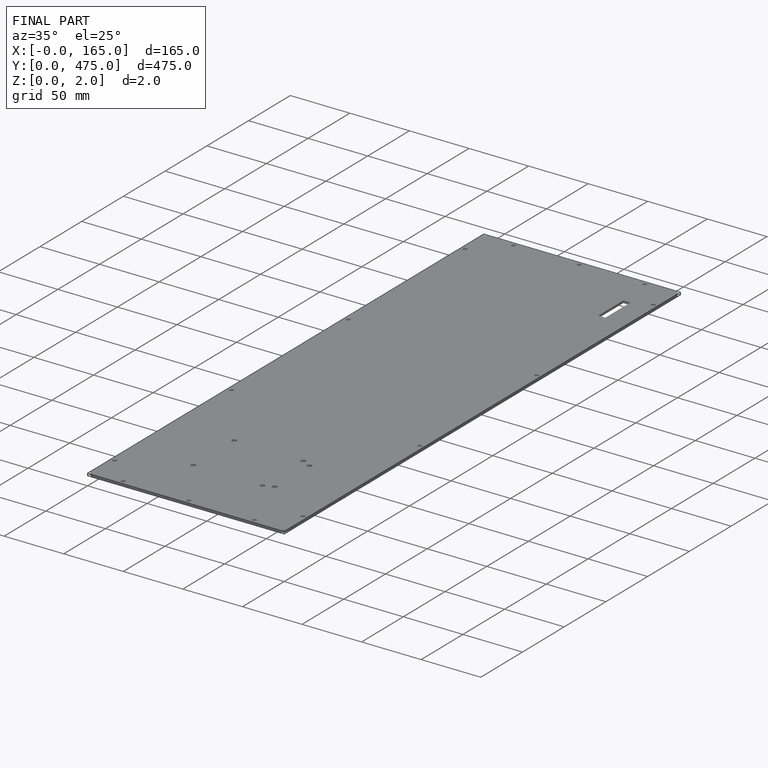
[diagram: finished part — iso view with bounding-box wireframe]
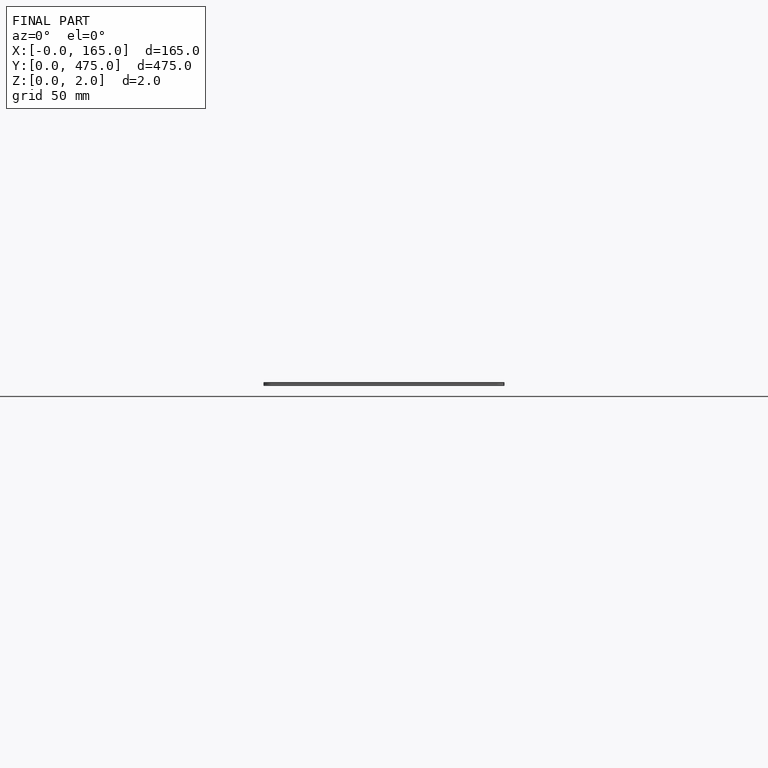
[diagram: finished part — front view with bounding-box wireframe]
